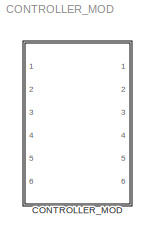
MODEL CONTROLLER_MOD
KIND model
CONFIG AbsTol = auto
CONFIG FixedStep = auto
CONFIG MaxStep = auto
CONFIG MinStep = auto
CONFIG RelTol = 1e-3
CONFIG Solver = ode45
CONFIG SolverMode = Auto
CONFIG StartTime = 0.0
CONFIG StopTime = 10.0
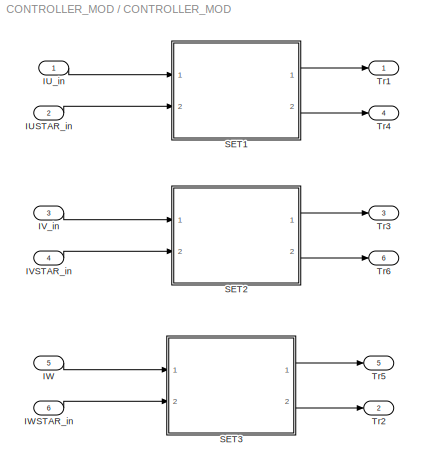
BLOCK [SubSystem] CONTROLLER_MOD
  Ports = [6, 6]
  TreatAsAtomicUnit = off
BLOCK [Inport] CONTROLLER_MOD/IUSTAR_in
  Port = 2
BLOCK [Inport] CONTROLLER_MOD/IU_in
BLOCK [Inport] CONTROLLER_MOD/IVSTAR_in
  Port = 4
BLOCK [Inport] CONTROLLER_MOD/IV_in
  Port = 3
BLOCK [Inport] CONTROLLER_MOD/IW
  Port = 5
BLOCK [Inport] CONTROLLER_MOD/IWSTAR_in
  Port = 6
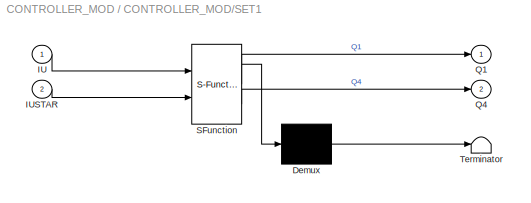
BLOCK [SubSystem] CONTROLLER_MOD/SET1
  MaskDescription = Stateflow diagram
  MaskDisplay = plot(sf('Private','sfblk','xIcon'),sf('Private','sfblk','yIcon'));text(0.5,0,sf('Private', 'sfblk', 'tIcon'),'HorizontalAl','Center','VerticalAl','Bottom');
  MaskIconFrame = off
  MaskIconOpaque = off
  MaskIconRotate = none
  MaskIconUnits = autoscale
  MaskSelfModifiable = on
  MaskType = Stateflow
  Ports = [2, 2]
  TreatAsAtomicUnit = off
BLOCK [Demux] CONTROLLER_MOD/SET1/ Demux 
  Outputs = 1
  Ports = [1, 1]
BLOCK [S-Function] CONTROLLER_MOD/SET1/ SFunction 
  FunctionName = sf_sfun
  PortCounts = [2 3]
  Ports = [2, 3]
  Tag = Stateflow S-Function CONTROLLER_MOD 1
BLOCK [Terminator] CONTROLLER_MOD/SET1/ Terminator 
BLOCK [Inport] CONTROLLER_MOD/SET1/IU
  PortDimensions = 1
BLOCK [Inport] CONTROLLER_MOD/SET1/IUSTAR
  Port = 2
  PortDimensions = 1
BLOCK [Outport] CONTROLLER_MOD/SET1/Q1
BLOCK [Outport] CONTROLLER_MOD/SET1/Q4
  Port = 2
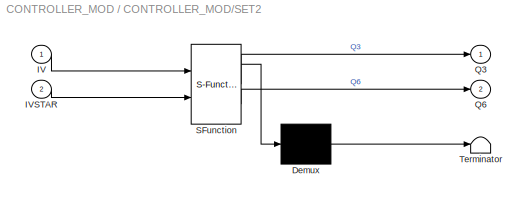
BLOCK [SubSystem] CONTROLLER_MOD/SET2
  MaskDescription = Stateflow diagram
  MaskDisplay = plot(sf('Private','sfblk','xIcon'),sf('Private','sfblk','yIcon'));text(0.5,0,sf('Private', 'sfblk', 'tIcon'),'HorizontalAl','Center','VerticalAl','Bottom');
  MaskIconFrame = off
  MaskIconOpaque = off
  MaskIconRotate = none
  MaskIconUnits = autoscale
  MaskSelfModifiable = on
  MaskType = Stateflow
  Ports = [2, 2]
  TreatAsAtomicUnit = off
BLOCK [Demux] CONTROLLER_MOD/SET2/ Demux 
  Outputs = 1
  Ports = [1, 1]
BLOCK [S-Function] CONTROLLER_MOD/SET2/ SFunction 
  FunctionName = sf_sfun
  PortCounts = [2 3]
  Ports = [2, 3]
  Tag = Stateflow S-Function CONTROLLER_MOD 2
BLOCK [Terminator] CONTROLLER_MOD/SET2/ Terminator 
BLOCK [Inport] CONTROLLER_MOD/SET2/IV
  PortDimensions = 1
BLOCK [Inport] CONTROLLER_MOD/SET2/IVSTAR
  Port = 2
  PortDimensions = 1
BLOCK [Outport] CONTROLLER_MOD/SET2/Q3
BLOCK [Outport] CONTROLLER_MOD/SET2/Q6
  Port = 2
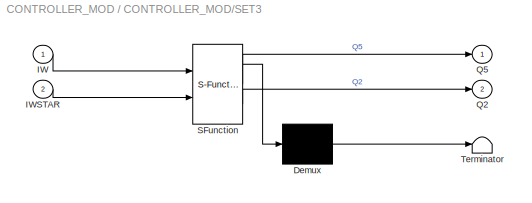
BLOCK [SubSystem] CONTROLLER_MOD/SET3
  MaskDescription = Stateflow diagram
  MaskDisplay = plot(sf('Private','sfblk','xIcon'),sf('Private','sfblk','yIcon'));text(0.5,0,sf('Private', 'sfblk', 'tIcon'),'HorizontalAl','Center','VerticalAl','Bottom');
  MaskIconFrame = off
  MaskIconOpaque = off
  MaskIconRotate = none
  MaskIconUnits = autoscale
  MaskSelfModifiable = on
  MaskType = Stateflow
  Ports = [2, 2]
  TreatAsAtomicUnit = off
BLOCK [Demux] CONTROLLER_MOD/SET3/ Demux 
  Outputs = 1
  Ports = [1, 1]
BLOCK [S-Function] CONTROLLER_MOD/SET3/ SFunction 
  FunctionName = sf_sfun
  PortCounts = [2 3]
  Ports = [2, 3]
  Tag = Stateflow S-Function CONTROLLER_MOD 3
BLOCK [Terminator] CONTROLLER_MOD/SET3/ Terminator 
BLOCK [Inport] CONTROLLER_MOD/SET3/IW
  PortDimensions = 1
BLOCK [Inport] CONTROLLER_MOD/SET3/IWSTAR
  Port = 2
  PortDimensions = 1
BLOCK [Outport] CONTROLLER_MOD/SET3/Q2
  Port = 2
BLOCK [Outport] CONTROLLER_MOD/SET3/Q5
BLOCK [Outport] CONTROLLER_MOD/Tr1
BLOCK [Outport] CONTROLLER_MOD/Tr2
  Port = 2
BLOCK [Outport] CONTROLLER_MOD/Tr3
  Port = 3
BLOCK [Outport] CONTROLLER_MOD/Tr4
  Port = 4
BLOCK [Outport] CONTROLLER_MOD/Tr5
  Port = 5
BLOCK [Outport] CONTROLLER_MOD/Tr6
  Port = 6
LINE CONTROLLER_MOD/IUSTAR_in:1 -> CONTROLLER_MOD/SET1:2
LINE CONTROLLER_MOD/IU_in:1 -> CONTROLLER_MOD/SET1:1
LINE CONTROLLER_MOD/IVSTAR_in:1 -> CONTROLLER_MOD/SET2:2
LINE CONTROLLER_MOD/IV_in:1 -> CONTROLLER_MOD/SET2:1
LINE CONTROLLER_MOD/IW:1 -> CONTROLLER_MOD/SET3:1
LINE CONTROLLER_MOD/IWSTAR_in:1 -> CONTROLLER_MOD/SET3:2
LINE CONTROLLER_MOD/SET1/ Demux :1 -> CONTROLLER_MOD/SET1/ Terminator :1
LINE CONTROLLER_MOD/SET1/ SFunction :1 -> CONTROLLER_MOD/SET1/ Demux :1
LINE CONTROLLER_MOD/SET1/ SFunction :2 -> CONTROLLER_MOD/SET1/Q1:1
LINE CONTROLLER_MOD/SET1/ SFunction :3 -> CONTROLLER_MOD/SET1/Q4:1
LINE CONTROLLER_MOD/SET1/IU:1 -> CONTROLLER_MOD/SET1/ SFunction :1
LINE CONTROLLER_MOD/SET1/IUSTAR:1 -> CONTROLLER_MOD/SET1/ SFunction :2
LINE CONTROLLER_MOD/SET1:1 -> CONTROLLER_MOD/Tr1:1
LINE CONTROLLER_MOD/SET1:2 -> CONTROLLER_MOD/Tr4:1
LINE CONTROLLER_MOD/SET2/ Demux :1 -> CONTROLLER_MOD/SET2/ Terminator :1
LINE CONTROLLER_MOD/SET2/ SFunction :1 -> CONTROLLER_MOD/SET2/ Demux :1
LINE CONTROLLER_MOD/SET2/ SFunction :2 -> CONTROLLER_MOD/SET2/Q3:1
LINE CONTROLLER_MOD/SET2/ SFunction :3 -> CONTROLLER_MOD/SET2/Q6:1
LINE CONTROLLER_MOD/SET2/IV:1 -> CONTROLLER_MOD/SET2/ SFunction :1
LINE CONTROLLER_MOD/SET2/IVSTAR:1 -> CONTROLLER_MOD/SET2/ SFunction :2
LINE CONTROLLER_MOD/SET2:1 -> CONTROLLER_MOD/Tr3:1
LINE CONTROLLER_MOD/SET2:2 -> CONTROLLER_MOD/Tr6:1
LINE CONTROLLER_MOD/SET3/ Demux :1 -> CONTROLLER_MOD/SET3/ Terminator :1
LINE CONTROLLER_MOD/SET3/ SFunction :1 -> CONTROLLER_MOD/SET3/ Demux :1
LINE CONTROLLER_MOD/SET3/ SFunction :2 -> CONTROLLER_MOD/SET3/Q5:1
LINE CONTROLLER_MOD/SET3/ SFunction :3 -> CONTROLLER_MOD/SET3/Q2:1
LINE CONTROLLER_MOD/SET3/IW:1 -> CONTROLLER_MOD/SET3/ SFunction :1
LINE CONTROLLER_MOD/SET3/IWSTAR:1 -> CONTROLLER_MOD/SET3/ SFunction :2
LINE CONTROLLER_MOD/SET3:1 -> CONTROLLER_MOD/Tr5:1
LINE CONTROLLER_MOD/SET3:2 -> CONTROLLER_MOD/Tr2:1
CHART CONTROLLER_MOD/SET1 states=3 transitions=3
  STATE_LABEL 'A/'
  STATE_LABEL 'A1/\\nduring:Q1=1;Q4=0;'
  STATE_LABEL 'A2/\\nduring:Q4=1;Q1=0;'
CHART CONTROLLER_MOD/SET2 states=3 transitions=3
  STATE_LABEL 'B/'
  STATE_LABEL 'B1/\\nduring:Q1=1;Q4=0;'
  STATE_LABEL 'B2/\\nduring:Q4=1;Q1=0;'
CHART CONTROLLER_MOD/SET3 states=3 transitions=3
  STATE_LABEL 'C/'
  STATE_LABEL 'C1/\\nduring:Q1=1;Q4=0;'
  STATE_LABEL 'C2/\\nduring:Q4=1;Q1=0;'
